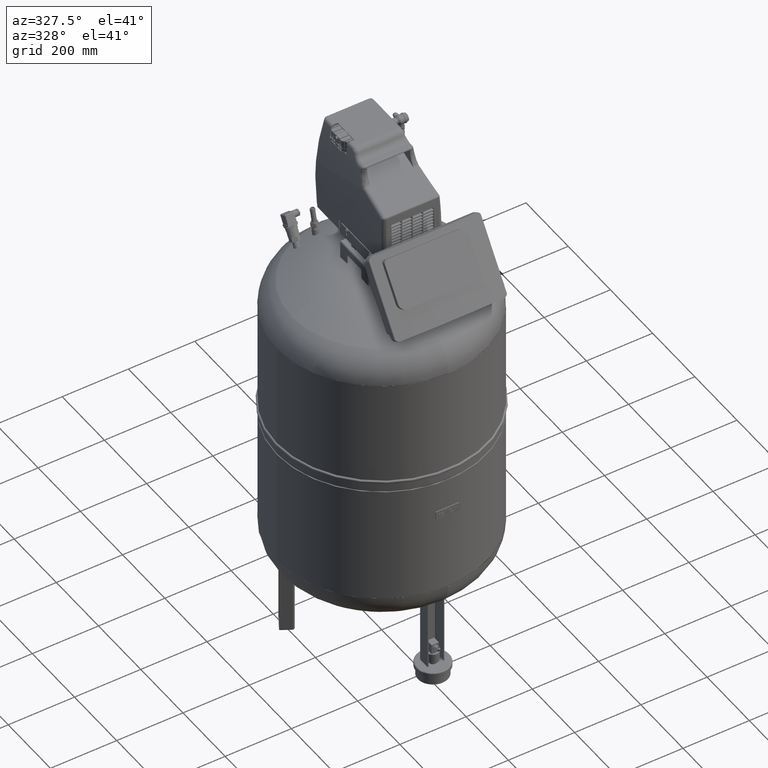
[diagram: clean part render]
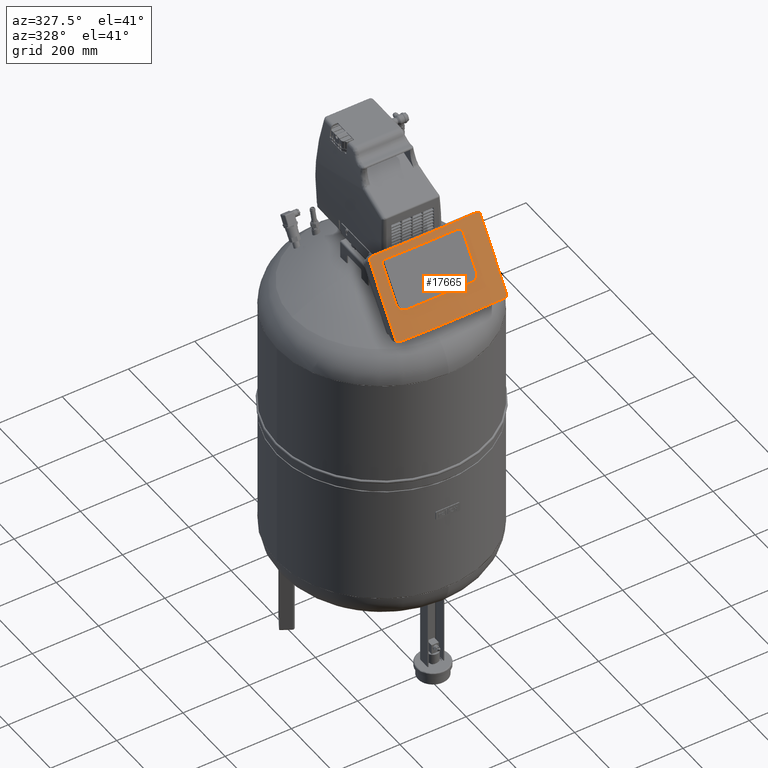
[diagram: same view with one face highlighted and labeled with its STEP entity id]
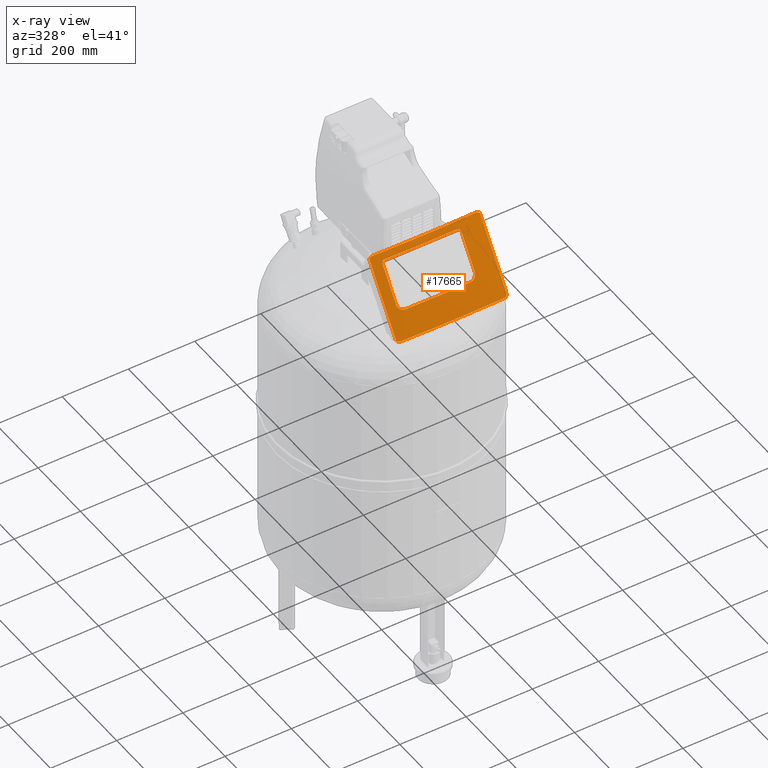
[diagram: x-ray of the same camera — body ghosted, the highlighted face saturated]
A machine part, auxiliary view. The second image highlights one B-rep face of the part: STEP entity #17665.
The next image is the same camera in x-ray: the body ghosted, the highlighted face saturated — about 0% of this face is hidden behind the body in this view.
In plain terms, the highlighted cylindrical surface (partial cylindrical patch) has radius 1449.96 mm, axis along (-0, -0.5736, -0.8192).
Its self-contained STEP definition (entity closure, byte-faithful):
#17523=AXIS2_PLACEMENT_3D('Cylinder Axis2P3D',#17520,#17521,#17522) ;
#17578=AXIS2_PLACEMENT_3D('Circle Axis2P3D',#17576,#17577,$) ;
#17634=AXIS2_PLACEMENT_3D('Circle Axis2P3D',#17632,#17633,$) ;
#17261=CARTESIAN_POINT('Vertex',(77.1999994202,-298.335856118,1326.57213701)) ;
#17265=CARTESIAN_POINT('Control Point',(77.1999994202,-298.335856118,1326.57213701)) ;
#17266=CARTESIAN_POINT('Control Point',(78.3031488365,-298.287469112,1326.53825606)) ;
#17267=CARTESIAN_POINT('Control Point',(79.419778462,-298.197020578,1326.56129586)) ;
#17268=CARTESIAN_POINT('Control Point',(80.5430584271,-298.062738331,1326.64440239)) ;
#17269=CARTESIAN_POINT('Control Point',(82.7787360606,-297.70566904,1326.93428847)) ;
#17270=CARTESIAN_POINT('Control Point',(84.9489194895,-297.178767495,1327.46599748)) ;
#17271=CARTESIAN_POINT('Control Point',(86.0066212903,-296.8745097,1327.79113158)) ;
#17272=CARTESIAN_POINT('Control Point',(88.0395178317,-296.194973286,1328.54817136)) ;
#17273=CARTESIAN_POINT('Control Point',(89.911965585,-295.377501842,1329.51349196)) ;
#17274=CARTESIAN_POINT('Control Point',(90.8035271876,-294.936580318,1330.04577141)) ;
#17275=CARTESIAN_POINT('Control Point',(91.6351425309,-294.472400841,1330.61657664)) ;
#17276=CARTESIAN_POINT('Control Point',(92.4082548671,-293.988056179,1331.22190899)) ;
#17277=CARTESIAN_POINT('Vertex',(92.4082548671,-293.988056179,1331.22190899)) ;
#17281=CARTESIAN_POINT('Control Point',(92.4082548671,-293.988056179,1331.22190899)) ;
#17282=CARTESIAN_POINT('Control Point',(93.6572957529,-293.205548569,1332.1998844)) ;
#17283=CARTESIAN_POINT('Control Point',(94.8027575642,-292.339594776,1333.30641854)) ;
#17284=CARTESIAN_POINT('Control Point',(95.8102293724,-291.397508014,1334.53513303)) ;
#17285=CARTESIAN_POINT('Control Point',(97.3608293725,-289.560099894,1336.97795099)) ;
#17286=CARTESIAN_POINT('Control Point',(98.2800725241,-287.621734014,1339.63726237)) ;
#17287=CARTESIAN_POINT('Control Point',(98.5632134139,-286.712013631,1340.90283674)) ;
#17288=CARTESIAN_POINT('Control Point',(98.6999994202,-285.809433703,1342.17520082)) ;
#17289=CARTESIAN_POINT('Control Point',(98.6999994202,-284.929654277,1343.43166708)) ;
#17290=CARTESIAN_POINT('Vertex',(98.6999994202,-284.929654277,1343.43166708)) ;
#17311=CARTESIAN_POINT('Line Origine',(98.6999994202,-253.382950278,1388.48502952)) ;
#17315=CARTESIAN_POINT('Vertex',(98.6999994202,-221.836246278,1433.53839195)) ;
#17336=CARTESIAN_POINT('Control Point',(98.6999994202,-221.836246278,1433.53839195)) ;
#17337=CARTESIAN_POINT('Control Point',(98.6999994202,-221.087588397,1434.60756781)) ;
#17338=CARTESIAN_POINT('Control Point',(98.4464537479,-220.318952425,1435.73594515)) ;
#17339=CARTESIAN_POINT('Control Point',(97.911545567,-219.614325367,1436.80592049)) ;
#17340=CARTESIAN_POINT('Control Point',(97.1344530521,-219.006618791,1437.76542094)) ;
#17341=CARTESIAN_POINT('Control Point',(96.2129279514,-218.527974986,1438.55618964)) ;
#17342=CARTESIAN_POINT('Vertex',(96.2129279514,-218.527974986,1438.55618964)) ;
#17346=CARTESIAN_POINT('Control Point',(96.2129279514,-218.527974986,1438.55618964)) ;
#17347=CARTESIAN_POINT('Control Point',(95.0569564103,-217.927558766,1439.54813886)) ;
#17348=CARTESIAN_POINT('Control Point',(93.5473927165,-217.484755702,1440.35431108)) ;
#17349=CARTESIAN_POINT('Control Point',(91.8341001665,-217.333235585,1440.76193392)) ;
#17350=CARTESIAN_POINT('Control Point',(90.1999994202,-217.416964271,1440.82056138)) ;
#17351=CARTESIAN_POINT('Vertex',(90.1999994202,-217.416964271,1440.82056138)) ;
#17373=CARTESIAN_POINT('Control Point',(90.1999994202,-217.416964271,1440.82056138)) ;
#17374=CARTESIAN_POINT('Control Point',(46.4400271195,-219.659438181,1442.39075852)) ;
#17375=CARTESIAN_POINT('Control Point',(2.57657854718,-220.546973462,1443.01221741)) ;
#17376=CARTESIAN_POINT('Control Point',(-41.3070037661,-220.075295773,1442.68194514)) ;
#17377=CARTESIAN_POINT('Control Point',(-85.126922504,-218.245305787,1441.40057236)) ;
#17378=CARTESIAN_POINT('Control Point',(-128.80000058,-215.063067681,1439.17234525)) ;
#17379=CARTESIAN_POINT('Vertex',(-128.80000058,-215.063067681,1439.17234525)) ;
#17400=CARTESIAN_POINT('Control Point',(-128.80000058,-215.063067681,1439.17234525)) ;
#17401=CARTESIAN_POINT('Control Point',(-130.10631187,-214.967891821,1439.10570239)) ;
#17402=CARTESIAN_POINT('Control Point',(-131.469913405,-215.012543982,1438.82739063)) ;
#17403=CARTESIAN_POINT('Control Point',(-132.7536191,-215.223834205,1438.32203648)) ;
#17404=CARTESIAN_POINT('Control Point',(-133.890782206,-215.58457607,1437.62279343)) ;
#17405=CARTESIAN_POINT('Control Point',(-134.815365263,-216.045228765,1436.81477432)) ;
#17406=CARTESIAN_POINT('Vertex',(-134.81536497,-216.045228911,1436.81477407)) ;
#17410=CARTESIAN_POINT('Control Point',(-134.815365263,-216.045228765,1436.81477432)) ;
#17411=CARTESIAN_POINT('Control Point',(-135.303247831,-216.288305271,1436.38840004)) ;
#17412=CARTESIAN_POINT('Control Point',(-135.750954872,-216.568339014,1435.91586452)) ;
#17413=CARTESIAN_POINT('Control Point',(-136.148514595,-216.886343632,1435.39621837)) ;
#17414=CARTESIAN_POINT('Control Point',(-136.763691539,-217.529212481,1434.37642572)) ;
#17415=CARTESIAN_POINT('Control Point',(-137.130573,-218.246171231,1433.29283772)) ;
#17416=CARTESIAN_POINT('Control Point',(-137.244791998,-218.594296592,1432.77676228)) ;
#17417=CARTESIAN_POINT('Control Point',(-137.30000058,-218.947010171,1432.26331264)) ;
#17418=CARTESIAN_POINT('Control Point',(-137.30000058,-219.298452638,1431.76140971)) ;
#17419=CARTESIAN_POINT('Vertex',(-137.30000058,-219.298452638,1431.76140972)) ;
#17440=CARTESIAN_POINT('Line Origine',(-137.30000058,-250.845156638,1386.70804728)) ;
#17444=CARTESIAN_POINT('Vertex',(-137.30000058,-282.391860637,1341.65468484)) ;
#17465=CARTESIAN_POINT('Control Point',(-137.30000058,-282.391860637,1341.65468484)) ;
#17466=CARTESIAN_POINT('Control Point',(-137.30000058,-284.288215135,1338.9463769)) ;
#17467=CARTESIAN_POINT('Control Point',(-136.654898757,-286.320254864,1336.15119003)) ;
#17468=CARTESIAN_POINT('Control Point',(-135.30999007,-288.271557969,1333.58713684)) ;
#17469=CARTESIAN_POINT('Control Point',(-133.345418653,-290.07062675,1331.33627482)) ;
#17470=CARTESIAN_POINT('Control Point',(-131.014062558,-291.582643345,1329.54471706)) ;
#17471=CARTESIAN_POINT('Vertex',(-131.014088785,-291.582658153,1329.54469543)) ;
#17475=CARTESIAN_POINT('Control Point',(-131.014062558,-291.582643345,1329.54471706)) ;
#17476=CARTESIAN_POINT('Control Point',(-129.920821828,-292.291671935,1328.70460348)) ;
#17477=CARTESIAN_POINT('Control Point',(-128.710702638,-292.962793843,1327.93551748)) ;
#17478=CARTESIAN_POINT('Control Point',(-127.376429593,-293.587895416,1327.24857189)) ;
#17479=CARTESIAN_POINT('Control Point',(-124.396349363,-294.757661012,1326.03145954)) ;
#17480=CARTESIAN_POINT('Control Point',(-121.139427985,-295.588162843,1325.32573668)) ;
#17481=CARTESIAN_POINT('Control Point',(-119.341872083,-295.92611925,1325.10315601)) ;
#17482=CARTESIAN_POINT('Control Point',(-117.553913719,-296.1479673,1325.04016077)) ;
#17483=CARTESIAN_POINT('Control Point',(-115.80000058,-296.262745528,1325.12052935)) ;
#17484=CARTESIAN_POINT('Vertex',(-115.80000058,-296.262745528,1325.12052935)) ;
#17506=CARTESIAN_POINT('Control Point',(-115.80000058,-296.262745528,1325.12052935)) ;
#17507=CARTESIAN_POINT('Control Point',(-77.2908190413,-298.782861553,1326.88513358)) ;
#17508=CARTESIAN_POINT('Control Point',(-38.6791774519,-300.252401566,1327.91411658)) ;
#17509=CARTESIAN_POINT('Control Point',(-0.0220171205129,-300.667637669,1328.20486803)) ;
#17510=CARTESIAN_POINT('Control Point',(38.6233888988,-300.027954672,1327.75695717)) ;
#17511=CARTESIAN_POINT('Control Point',(77.1999994202,-298.335856118,1326.57213701)) ;
#17520=CARTESIAN_POINT('Axis2P3D Location',(-0.330481226233,979.477988273,627.16118494)) ;
#17526=CARTESIAN_POINT('Control Point',(155.69999942,-335.009110198,1263.13448099)) ;
#17527=CARTESIAN_POINT('Control Point',(156.770070568,-334.914231703,1263.06805058)) ;
#17528=CARTESIAN_POINT('Control Point',(157.859016297,-334.754653667,1263.08870755)) ;
#17529=CARTESIAN_POINT('Control Point',(158.944323461,-334.535588243,1263.19313534)) ;
#17530=CARTESIAN_POINT('Control Point',(161.085324839,-333.978016101,1263.57464929)) ;
#17531=CARTESIAN_POINT('Control Point',(163.051889671,-333.187564869,1264.31634197)) ;
#17532=CARTESIAN_POINT('Control Point',(163.985383324,-332.740540686,1264.76951093)) ;
#17533=CARTESIAN_POINT('Control Point',(164.844738292,-332.256467208,1265.28914022)) ;
#17534=CARTESIAN_POINT('Control Point',(165.611829145,-331.742991957,1265.86838874)) ;
#17535=CARTESIAN_POINT('Vertex',(155.69999942,-335.009110198,1263.13448099)) ;
#17537=CARTESIAN_POINT('Vertex',(165.611828712,-331.742990293,1265.86838784)) ;
#17541=CARTESIAN_POINT('Control Point',(165.611829145,-331.742991957,1265.86838874)) ;
#17542=CARTESIAN_POINT('Control Point',(165.997006432,-331.485161998,1266.15924526)) ;
#17543=CARTESIAN_POINT('Control Point',(166.364224446,-331.213203566,1266.47361151)) ;
#17544=CARTESIAN_POINT('Control Point',(166.70736352,-330.930176379,1266.80843567)) ;
#17545=CARTESIAN_POINT('Vertex',(166.70736352,-330.930176379,1266.80843567)) ;
#17548=CARTESIAN_POINT('Line Origine',(166.70736352,-200.354988908,1453.28912939)) ;
#17552=CARTESIAN_POINT('Vertex',(166.70736352,-203.423111107,1448.90739679)) ;
#17556=CARTESIAN_POINT('Control Point',(166.70736352,-203.423111107,1448.90739679)) ;
#17557=CARTESIAN_POINT('Control Point',(166.364224446,-203.205280311,1449.28787196)) ;
#17558=CARTESIAN_POINT('Control Point',(165.997006432,-203.00288793,1449.65094888)) ;
#17559=CARTESIAN_POINT('Control Point',(165.611829145,-202.817755244,1449.99270857)) ;
#17560=CARTESIAN_POINT('Vertex',(165.611828712,-202.817753829,1449.99270732)) ;
#17564=CARTESIAN_POINT('Control Point',(165.611829145,-202.817755244,1449.99270857)) ;
#17565=CARTESIAN_POINT('Control Point',(164.85549336,-202.454227901,1450.6637894)) ;
#17566=CARTESIAN_POINT('Control Point',(164.009462519,-202.135388369,1451.2881877)) ;
#17567=CARTESIAN_POINT('Control Point',(163.093762258,-201.865857173,1451.85486811)) ;
#17568=CARTESIAN_POINT('Control Point',(161.132859187,-201.433752592,1452.85818026)) ;
#17569=CARTESIAN_POINT('Control Point',(158.994409325,-201.259865517,1453.52096962)) ;
#17570=CARTESIAN_POINT('Control Point',(157.889609743,-201.234782189,1453.7690231)) ;
#17571=CARTESIAN_POINT('Control Point',(156.785100325,-201.269593441,1453.92953809)) ;
#17572=CARTESIAN_POINT('Control Point',(155.69999942,-201.365800528,1453.99690731)) ;
#17573=CARTESIAN_POINT('Vertex',(155.69999942,-201.365800529,1453.99690731)) ;
#17576=CARTESIAN_POINT('Axis2P3D Location',(-0.330481226233,979.477988273,627.16118494)) ;
#17580=CARTESIAN_POINT('Vertex',(-156.30000058,-201.371204517,1454.00069122)) ;
#17584=CARTESIAN_POINT('Control Point',(-156.30000058,-201.371204516,1454.00069122)) ;
#17585=CARTESIAN_POINT('Control Point',(-157.370073387,-201.276367352,1453.93428129)) ;
#17586=CARTESIAN_POINT('Control Point',(-158.459019714,-201.241237978,1453.77728829)) ;
#17587=CARTESIAN_POINT('Control Point',(-159.544326646,-201.264481397,1453.53574422)) ;
#17588=CARTESIAN_POINT('Control Point',(-161.685325227,-201.432361387,1452.88136555)) ;
#17589=CARTESIAN_POINT('Control Point',(-163.651886495,-201.859042387,1451.88496088)) ;
#17590=CARTESIAN_POINT('Control Point',(-164.585377568,-202.132022288,1451.30992772)) ;
#17591=CARTESIAN_POINT('Control Point',(-165.444730972,-202.454780129,1450.67734702)) ;
#17592=CARTESIAN_POINT('Control Point',(-166.211821021,-202.823502524,1449.99674426)) ;
#17593=CARTESIAN_POINT('Vertex',(-166.211820567,-202.823501043,1449.99674295)) ;
#17597=CARTESIAN_POINT('Control Point',(-166.211821021,-202.823502524,1449.99674426)) ;
#17598=CARTESIAN_POINT('Control Point',(-166.619882082,-203.019648012,1449.63469096)) ;
#17599=CARTESIAN_POINT('Control Point',(-167.007793579,-203.235186191,1449.24867875)) ;
#17600=CARTESIAN_POINT('Control Point',(-167.368325873,-203.467927195,1448.8433928)) ;
#17601=CARTESIAN_POINT('Vertex',(-167.368325873,-203.467927195,1448.8433928)) ;
#17604=CARTESIAN_POINT('Line Origine',(-167.368325873,-200.354988918,1453.2891294)) ;
#17608=CARTESIAN_POINT('Vertex',(-167.368325873,-330.88536031,1266.87243967)) ;
#17612=CARTESIAN_POINT('Control Point',(-167.368325873,-330.88536031,1266.87243967)) ;
#17613=CARTESIAN_POINT('Control Point',(-167.007793579,-331.186602415,1266.51511871)) ;
#17614=CARTESIAN_POINT('Control Point',(-166.619882082,-331.475616841,1266.18055512)) ;
#17615=CARTESIAN_POINT('Control Point',(-166.211821021,-331.748749949,1265.87240913)) ;
#17616=CARTESIAN_POINT('Vertex',(-166.211820567,-331.748748207,1265.87240819)) ;
#17620=CARTESIAN_POINT('Control Point',(-166.211821021,-331.748749949,1265.87240913)) ;
#17621=CARTESIAN_POINT('Control Point',(-165.455483855,-332.254999481,1265.30126357)) ;
#17622=CARTESIAN_POINT('Control Point',(-164.609451854,-332.73266245,1264.78807539)) ;
#17623=CARTESIAN_POINT('Control Point',(-163.693750777,-333.172950222,1264.34096098)) ;
#17624=CARTESIAN_POINT('Control Point',(-161.732850069,-333.967895513,1263.59171731)) ;
#17625=CARTESIAN_POINT('Control Point',(-159.594402397,-334.531164136,1263.20157911)) ;
#17626=CARTESIAN_POINT('Control Point',(-158.489607153,-334.755639386,1263.0931427)) ;
#17627=CARTESIAN_POINT('Control Point',(-157.385100209,-334.91834121,1263.07092815)) ;
#17628=CARTESIAN_POINT('Control Point',(-156.30000058,-335.014514186,1263.1382649)) ;
#17629=CARTESIAN_POINT('Vertex',(-156.30000058,-335.014514187,1263.1382649)) ;
#17632=CARTESIAN_POINT('Axis2P3D Location',(-0.330481226233,845.834678603,436.298758621)) ;
#17312=DIRECTION('Vector Direction',(0.,0.573576436351,0.819152044289)) ;
#17441=DIRECTION('Vector Direction',(0.,-0.573576436351,-0.819152044289)) ;
#17521=DIRECTION('Axis2P3D Direction',(-3.05311331772E-016,-0.573576436351,-0.819152044289)) ;
#17522=DIRECTION('Axis2P3D XDirection',(0.115201393587,0.813698257778,-0.569757653924)) ;
#17549=DIRECTION('Vector Direction',(-3.05311687043E-016,-0.573576436351,-0.819152044289)) ;
#17577=DIRECTION('Axis2P3D Direction',(-3.05311331772E-016,-0.573576436351,-0.819152044289)) ;
#17605=DIRECTION('Vector Direction',(-3.05311687043E-016,-0.573576436351,-0.819152044289)) ;
#17633=DIRECTION('Axis2P3D Direction',(-3.05311331772E-016,-0.573576436351,-0.819152044289)) ;
#17313=VECTOR('Line Direction',#17312,1.) ;
#17442=VECTOR('Line Direction',#17441,1.) ;
#17550=VECTOR('Line Direction',#17549,1.) ;
#17606=VECTOR('Line Direction',#17605,1.) ;
#17638=ORIENTED_EDGE('',*,*,#17539,.T.) ;
#17639=ORIENTED_EDGE('',*,*,#17547,.T.) ;
#17640=ORIENTED_EDGE('',*,*,#17554,.F.) ;
#17641=ORIENTED_EDGE('',*,*,#17562,.T.) ;
#17642=ORIENTED_EDGE('',*,*,#17575,.T.) ;
#17643=ORIENTED_EDGE('',*,*,#17582,.T.) ;
#17644=ORIENTED_EDGE('',*,*,#17595,.T.) ;
#17645=ORIENTED_EDGE('',*,*,#17603,.T.) ;
#17646=ORIENTED_EDGE('',*,*,#17610,.T.) ;
#17647=ORIENTED_EDGE('',*,*,#17618,.T.) ;
#17648=ORIENTED_EDGE('',*,*,#17631,.T.) ;
#17649=ORIENTED_EDGE('',*,*,#17636,.F.) ;
#17652=ORIENTED_EDGE('',*,*,#17421,.F.) ;
#17653=ORIENTED_EDGE('',*,*,#17408,.F.) ;
#17654=ORIENTED_EDGE('',*,*,#17381,.F.) ;
#17655=ORIENTED_EDGE('',*,*,#17353,.F.) ;
#17656=ORIENTED_EDGE('',*,*,#17344,.F.) ;
#17657=ORIENTED_EDGE('',*,*,#17317,.F.) ;
#17658=ORIENTED_EDGE('',*,*,#17292,.F.) ;
#17659=ORIENTED_EDGE('',*,*,#17279,.F.) ;
#17660=ORIENTED_EDGE('',*,*,#17512,.F.) ;
#17661=ORIENTED_EDGE('',*,*,#17486,.F.) ;
#17662=ORIENTED_EDGE('',*,*,#17473,.F.) ;
#17663=ORIENTED_EDGE('',*,*,#17446,.F.) ;
#17664=FACE_BOUND('',#17651,.T.) ;
#17665=ADVANCED_FACE('308',(#17650,#17664),#17524,.T.) ;
#17264=B_SPLINE_CURVE_WITH_KNOTS('',5,(#17265,#17266,#17267,#17268,#17269,#17270,#17271,#17272,#17273,#17274,#17275,#17276),.UNSPECIFIED.,.F.,.U.,(6,3,3,6),(0.,7.98649485446,15.9729897089,23.8881409201),.UNSPECIFIED.) ;
#17280=B_SPLINE_CURVE_WITH_KNOTS('',5,(#17281,#17282,#17283,#17284,#17285,#17286,#17287,#17288,#17289),.UNSPECIFIED.,.F.,.U.,(6,3,6),(0.,12.7877243921,23.8765463797),.UNSPECIFIED.) ;
#17335=B_SPLINE_CURVE_WITH_KNOTS('',5,(#17336,#17337,#17338,#17339,#17340,#17341),.UNSPECIFIED.,.F.,.U.,(6,6),(0.,9.45842964229),.UNSPECIFIED.) ;
#17345=B_SPLINE_CURVE_WITH_KNOTS('',4,(#17346,#17347,#17348,#17349,#17350),.UNSPECIFIED.,.F.,.U.,(5,5),(0.,9.49180916058),.UNSPECIFIED.) ;
#17372=B_SPLINE_CURVE_WITH_KNOTS('',5,(#17373,#17374,#17375,#17376,#17377,#17378),.UNSPECIFIED.,.F.,.U.,(6,6),(0.,310.034625811),.UNSPECIFIED.) ;
#17399=B_SPLINE_CURVE_WITH_KNOTS('',5,(#17400,#17401,#17402,#17403,#17404,#17405),.UNSPECIFIED.,.F.,.U.,(6,6),(0.,9.50364169274),.UNSPECIFIED.) ;
#17409=B_SPLINE_CURVE_WITH_KNOTS('',5,(#17410,#17411,#17412,#17413,#17414,#17415,#17416,#17417,#17418),.UNSPECIFIED.,.F.,.U.,(6,3,6),(0.,5.01486705402,9.45493366353),.UNSPECIFIED.) ;
#17464=B_SPLINE_CURVE_WITH_KNOTS('',5,(#17465,#17466,#17467,#17468,#17469,#17470),.UNSPECIFIED.,.F.,.U.,(6,6),(0.,23.9018820924),.UNSPECIFIED.) ;
#17474=B_SPLINE_CURVE_WITH_KNOTS('',5,(#17475,#17476,#17477,#17478,#17479,#17480,#17481,#17482,#17483),.UNSPECIFIED.,.F.,.U.,(6,3,6),(0.,11.2082882062,23.9283585455),.UNSPECIFIED.) ;
#17505=B_SPLINE_CURVE_WITH_KNOTS('',5,(#17506,#17507,#17508,#17509,#17510,#17511),.UNSPECIFIED.,.F.,.U.,(6,6),(0.,273.168617859),.UNSPECIFIED.) ;
#17525=B_SPLINE_CURVE_WITH_KNOTS('',5,(#17526,#17527,#17528,#17529,#17530,#17531,#17532,#17533,#17534),.UNSPECIFIED.,.F.,.U.,(6,3,6),(0.,7.78432586899,15.6659602498),.UNSPECIFIED.) ;
#17540=B_SPLINE_CURVE_WITH_KNOTS('',3,(#17541,#17542,#17543,#17544),.UNSPECIFIED.,.F.,.U.,(4,4),(0.,2.37455044198),.UNSPECIFIED.) ;
#17555=B_SPLINE_CURVE_WITH_KNOTS('',3,(#17556,#17557,#17558,#17559),.UNSPECIFIED.,.F.,.U.,(4,4),(0.,2.37455044198),.UNSPECIFIED.) ;
#17563=B_SPLINE_CURVE_WITH_KNOTS('',5,(#17564,#17565,#17566,#17567,#17568,#17569,#17570,#17571,#17572),.UNSPECIFIED.,.F.,.U.,(6,3,6),(0.,7.77112919892,15.6647903456),.UNSPECIFIED.) ;
#17583=B_SPLINE_CURVE_WITH_KNOTS('',5,(#17584,#17585,#17586,#17587,#17588,#17589,#17590,#17591,#17592),.UNSPECIFIED.,.F.,.U.,(6,3,6),(0.,7.78405936367,15.6654126185),.UNSPECIFIED.) ;
#17596=B_SPLINE_CURVE_WITH_KNOTS('',3,(#17597,#17598,#17599,#17600),.UNSPECIFIED.,.F.,.U.,(4,4),(0.,2.51553781084),.UNSPECIFIED.) ;
#17611=B_SPLINE_CURVE_WITH_KNOTS('',3,(#17612,#17613,#17614,#17615),.UNSPECIFIED.,.F.,.U.,(4,4),(0.,2.51553781089),.UNSPECIFIED.) ;
#17619=B_SPLINE_CURVE_WITH_KNOTS('',5,(#17620,#17621,#17622,#17623,#17624,#17625,#17626,#17627,#17628),.UNSPECIFIED.,.F.,.U.,(6,3,6),(0.,7.77087435692,15.6642437303),.UNSPECIFIED.) ;
#17579=CIRCLE('generated circle',#17578,1449.96374997) ;
#17635=CIRCLE('generated circle',#17634,1449.96374997) ;
#17524=CYLINDRICAL_SURFACE('generated cylinder',#17523,1449.96374997) ;
#17279=EDGE_CURVE('',#17262,#17278,#17264,.T.) ;
#17292=EDGE_CURVE('',#17278,#17291,#17280,.T.) ;
#17317=EDGE_CURVE('',#17291,#17316,#17314,.T.) ;
#17344=EDGE_CURVE('',#17316,#17343,#17335,.T.) ;
#17353=EDGE_CURVE('',#17343,#17352,#17345,.T.) ;
#17381=EDGE_CURVE('',#17352,#17380,#17372,.T.) ;
#17408=EDGE_CURVE('',#17380,#17407,#17399,.T.) ;
#17421=EDGE_CURVE('',#17407,#17420,#17409,.T.) ;
#17446=EDGE_CURVE('',#17420,#17445,#17443,.T.) ;
#17473=EDGE_CURVE('',#17445,#17472,#17464,.T.) ;
#17486=EDGE_CURVE('',#17472,#17485,#17474,.T.) ;
#17512=EDGE_CURVE('',#17485,#17262,#17505,.T.) ;
#17539=EDGE_CURVE('',#17536,#17538,#17525,.T.) ;
#17547=EDGE_CURVE('',#17538,#17546,#17540,.T.) ;
#17554=EDGE_CURVE('',#17553,#17546,#17551,.T.) ;
#17562=EDGE_CURVE('',#17553,#17561,#17555,.T.) ;
#17575=EDGE_CURVE('',#17561,#17574,#17563,.T.) ;
#17582=EDGE_CURVE('',#17574,#17581,#17579,.T.) ;
#17595=EDGE_CURVE('',#17581,#17594,#17583,.T.) ;
#17603=EDGE_CURVE('',#17594,#17602,#17596,.T.) ;
#17610=EDGE_CURVE('',#17602,#17609,#17607,.T.) ;
#17618=EDGE_CURVE('',#17609,#17617,#17611,.T.) ;
#17631=EDGE_CURVE('',#17617,#17630,#17619,.T.) ;
#17636=EDGE_CURVE('',#17536,#17630,#17635,.T.) ;
#17637=EDGE_LOOP('',(#17638,#17639,#17640,#17641,#17642,#17643,#17644,#17645,#17646,#17647,#17648,#17649)) ;
#17651=EDGE_LOOP('',(#17652,#17653,#17654,#17655,#17656,#17657,#17658,#17659,#17660,#17661,#17662,#17663)) ;
#17650=FACE_OUTER_BOUND('',#17637,.T.) ;
#17314=LINE('Line',#17311,#17313) ;
#17443=LINE('Line',#17440,#17442) ;
#17551=LINE('Line',#17548,#17550) ;
#17607=LINE('Line',#17604,#17606) ;
#17262=VERTEX_POINT('',#17261) ;
#17278=VERTEX_POINT('',#17277) ;
#17291=VERTEX_POINT('',#17290) ;
#17316=VERTEX_POINT('',#17315) ;
#17343=VERTEX_POINT('',#17342) ;
#17352=VERTEX_POINT('',#17351) ;
#17380=VERTEX_POINT('',#17379) ;
#17407=VERTEX_POINT('',#17406) ;
#17420=VERTEX_POINT('',#17419) ;
#17445=VERTEX_POINT('',#17444) ;
#17472=VERTEX_POINT('',#17471) ;
#17485=VERTEX_POINT('',#17484) ;
#17536=VERTEX_POINT('',#17535) ;
#17538=VERTEX_POINT('',#17537) ;
#17546=VERTEX_POINT('',#17545) ;
#17553=VERTEX_POINT('',#17552) ;
#17561=VERTEX_POINT('',#17560) ;
#17574=VERTEX_POINT('',#17573) ;
#17581=VERTEX_POINT('',#17580) ;
#17594=VERTEX_POINT('',#17593) ;
#17602=VERTEX_POINT('',#17601) ;
#17609=VERTEX_POINT('',#17608) ;
#17617=VERTEX_POINT('',#17616) ;
#17630=VERTEX_POINT('',#17629) ;